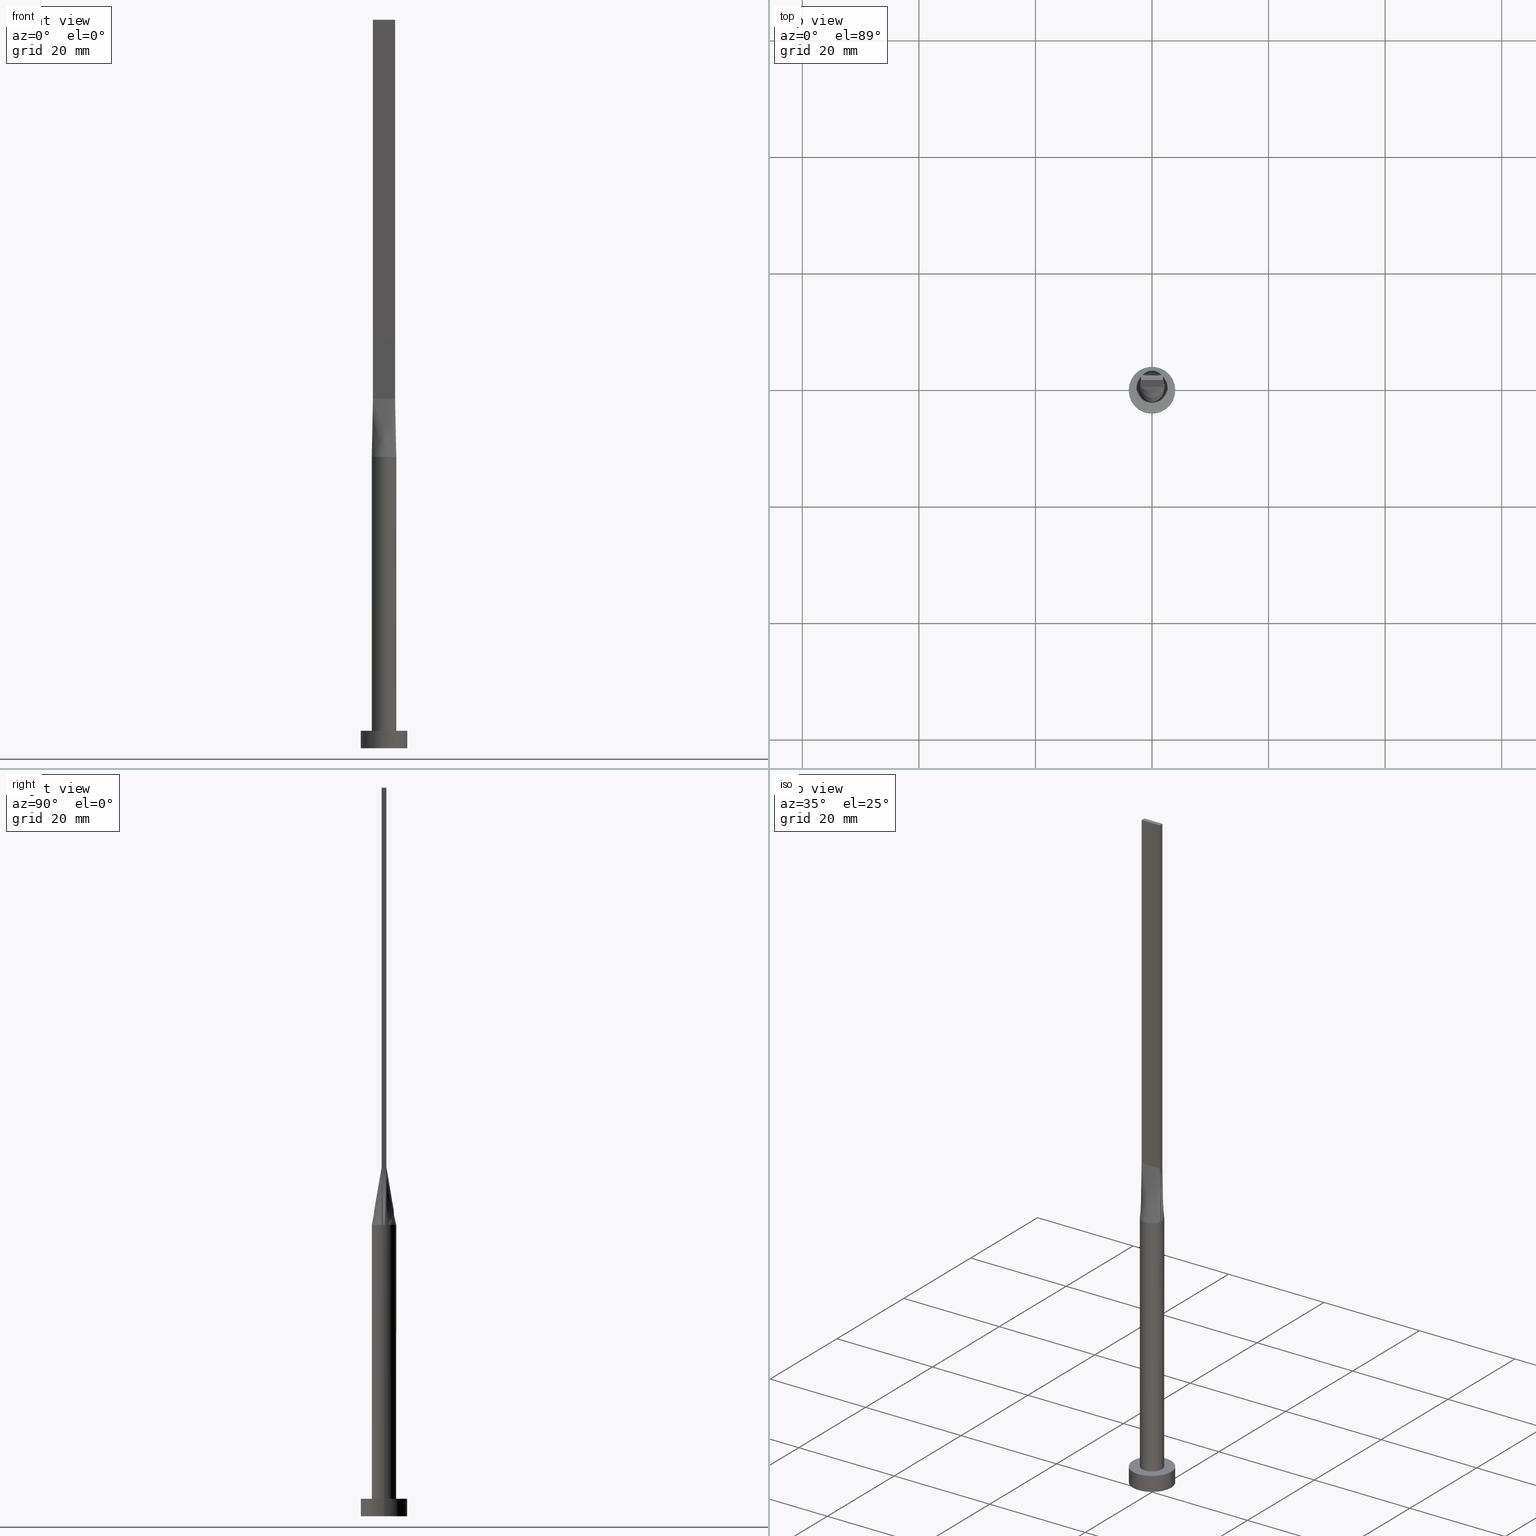
[diagram: canonical four-view strip — front | top / right | iso, engineering-drawing reading convention]
A machine part, canonical four-view strip (front | top / right | iso — engineering-drawing reading convention). The complete STEP part file that produces these views, byte-faithful:
ISO-10303-21;
HEADER;
FILE_DESCRIPTION (( 'STEP AP203' ),
    '1' );
FILE_NAME ('3c75.STEP',
    '2026-02-12T09:03:59',
    ( '' ),
    ( '' ),
    'SwSTEP 2.0',
    'SolidWorks 2019',
    '' );
FILE_SCHEMA (( 'CONFIG_CONTROL_DESIGN' ));
ENDSEC;

DATA;
#1 = LINE ( 'NONE', #446, #465 ) ;
#2 = FACE_OUTER_BOUND ( 'NONE', #127, .T. ) ;
#3 = CARTESIAN_POINT ( 'NONE',  ( 0.5670887265440289760, -2.040296735810464668, 50.00000000000000000 ) ) ;
#4 = DIRECTION ( 'NONE',  ( -1.000000000000000000, 8.131516293641282269E-16, 0.000000000000000000 ) ) ;
#5 = CARTESIAN_POINT ( 'NONE',  ( 0.000000000000000000, 0.000000000000000000, 3.000000000000000000 ) ) ;
#6 = AXIS2_PLACEMENT_3D ( 'NONE', #504, #7, #67 ) ;
#7 = DIRECTION ( 'NONE',  ( 0.000000000000000000, 0.000000000000000000, 1.000000000000000000 ) ) ;
#8 = DIRECTION ( 'NONE',  ( -0.000000000000000000, -0.000000000000000000, -1.000000000000000000 ) ) ;
#9 = CARTESIAN_POINT ( 'NONE',  ( -0.5670887265440298641, 2.040296735810464668, 50.00000000000000000 ) ) ;
#10 = CARTESIAN_POINT ( 'NONE',  ( -1.977477274236086657, -0.4163110051023335423, 55.00000000000000711 ) ) ;
#11 = CARTESIAN_POINT ( 'NONE',  ( 0.000000000000000000, 0.000000000000000000, 3.000000000000000000 ) ) ;
#12 = CARTESIAN_POINT ( 'NONE',  ( 2.054954548472173403, 0.4326220102046680616, 50.00000000000000000 ) ) ;
#13 = CARTESIAN_POINT ( 'NONE',  ( 1.899999999999999023, -0.3999999999999998002, 125.0000000000000000 ) ) ;
#14 = EDGE_CURVE ( 'NONE', #24, #270, #248, .T. ) ;
#15 = CARTESIAN_POINT ( 'NONE',  ( 1.638039177766652754, 1.336522195786985057, 50.00000000000002132 ) ) ;
#16 = VECTOR ( 'NONE', #81, 1000.000000000000000 ) ;
#17 = CARTESIAN_POINT ( 'NONE',  ( 0.000000000000000000, 0.000000000000000000, 0.000000000000000000 ) ) ;
#18 = ORIENTED_EDGE ( 'NONE', *, *, #239, .T. ) ;
#19 = PLANE ( 'NONE',  #450 ) ;
#20 = AXIS2_PLACEMENT_3D ( 'NONE', #464, #280, #323 ) ;
#21 = AXIS2_PLACEMENT_3D ( 'NONE', #353, #39, #267 ) ;
#22 = APPLICATION_PROTOCOL_DEFINITION ( 'international standard', 'config_control_design', 1994, #263 ) ;
#23 = EDGE_LOOP ( 'NONE', ( #18, #473, #213, #252 ) ) ;
#24 = VERTEX_POINT ( 'NONE', #536 ) ;
#25 = CALENDAR_DATE ( 2026, 12, 2 ) ;
#26 = CARTESIAN_POINT ( 'NONE',  ( -1.108333333333333171, 0.4000000000000001887, 60.00000000000000000 ) ) ;
#27 = CARTESIAN_POINT ( 'NONE',  ( 2.099516882689679953, 0.1457539759246152533, 50.00000000000000000 ) ) ;
#28 = EDGE_CURVE ( 'NONE', #522, #93, #44, .T. ) ;
#29 = EDGE_LOOP ( 'NONE', ( #336, #305, #171, #33, #296, #394 ) ) ;
#30 = EDGE_CURVE ( 'NONE', #573, #38, #221, .T. ) ;
#31 = CARTESIAN_POINT ( 'NONE',  ( -1.899999999999999689, 0.4000000000000002442, 125.0000000000000000 ) ) ;
#32 = LOCAL_TIME ( 10, 3, 59.00000000000000000, #210 ) ;
#33 = ORIENTED_EDGE ( 'NONE', *, *, #303, .F. ) ;
#34 = VERTEX_POINT ( 'NONE', #269 ) ;
#35 = CARTESIAN_POINT ( 'NONE',  ( 1.899999999999999023, -0.3999999999999998002, 125.0000000000000000 ) ) ;
#36 =( NAMED_UNIT ( * ) SI_UNIT ( $, .STERADIAN. ) SOLID_ANGLE_UNIT ( ) );
#37 = PRODUCT_RELATED_PRODUCT_CATEGORY ( 'detail', '', ( #151 ) ) ;
#38 = VERTEX_POINT ( 'NONE', #286 ) ;
#39 = DIRECTION ( 'NONE',  ( 0.000000000000000000, 0.000000000000000000, 1.000000000000000000 ) ) ;
#40 = PLANE ( 'NONE',  #178 ) ;
#41 = ORIENTED_EDGE ( 'NONE', *, *, #554, .F. ) ;
#42 = CARTESIAN_POINT ( 'NONE',  ( 2.099758441344840243, 4.928843353830161703E-16, 50.00000000000000000 ) ) ;
#43 = CARTESIAN_POINT ( 'NONE',  ( 1.977477274236086213, -0.4163110051023340419, 55.00000000000000711 ) ) ;
#44 = LINE ( 'NONE', #402, #556 ) ;
#45 = VECTOR ( 'NONE', #153, 1000.000000000000000 ) ;
#46 = AXIS2_PLACEMENT_3D ( 'NONE', #17, #72, #338 ) ;
#47 = ORIENTED_EDGE ( 'NONE', *, *, #119, .T. ) ;
#48 = CARTESIAN_POINT ( 'NONE',  ( 1.069497409764671003, 1.827724181718572538, 50.00000000000000711 ) ) ;
#49 = DIRECTION ( 'NONE',  ( -0.000000000000000000, -0.000000000000000000, -1.000000000000000000 ) ) ;
#50 = LINE ( 'NONE', #395, #301 ) ;
#51 = LINE ( 'NONE', #370, #409 ) ;
#52 = DIRECTION ( 'NONE',  ( 8.131516293641283255E-16, 1.000000000000000000, 0.000000000000000000 ) ) ;
#53 = LINE ( 'NONE', #415, #249 ) ;
#54 = AXIS2_PLACEMENT_3D ( 'NONE', #549, #463, #506 ) ;
#55 = VECTOR ( 'NONE', #476, 1000.000000000000000 ) ;
#56 = CARTESIAN_POINT ( 'NONE',  ( -1.899999999999999911, -0.3999999999999995781, 60.00000000000000711 ) ) ;
#57 = CARTESIAN_POINT ( 'NONE',  ( -1.899999999999999689, 0.4000000000000002442, 125.0000000000000000 ) ) ;
#58 = UNCERTAINTY_MEASURE_WITH_UNIT (LENGTH_MEASURE( 1.000000000000000082E-05 ), #487, 'distance_accuracy_value', 'NONE');
#59 = DIRECTION ( 'NONE',  ( -0.01549351246150988334, -0.003261792097160004338, 0.9998746480354023802 ) ) ;
#60 = CC_DESIGN_DATE_AND_TIME_ASSIGNMENT ( #485, #75, ( #190 ) ) ;
#61 = DIRECTION ( 'NONE',  ( 1.000000000000000000, 0.000000000000000000, 0.000000000000000000 ) ) ;
#62 = EDGE_CURVE ( 'NONE', #168, #569, #467, .T. ) ;
#63 = CARTESIAN_POINT ( 'NONE',  ( -1.583333333333333037, 0.4000000000000002442, 60.00000000000000000 ) ) ;
#64 = AXIS2_PLACEMENT_3D ( 'NONE', #87, #184, #177 ) ;
#65 = ORIENTED_EDGE ( 'NONE', *, *, #363, .T. ) ;
#66 = DATE_AND_TIME ( #201, #513 ) ;
#67 = DIRECTION ( 'NONE',  ( 1.000000000000000000, 0.000000000000000000, 0.000000000000000000 ) ) ;
#68 = CARTESIAN_POINT ( 'NONE',  ( 2.100000000000000089, 2.571758278209441957E-16, 50.00000000000000000 ) ) ;
#69 = ORIENTED_EDGE ( 'NONE', *, *, #164, .T. ) ;
#70 = CARTESIAN_POINT ( 'NONE',  ( -1.069497409764671003, 1.827724181718571872, 50.00000000000000711 ) ) ;
#71 = ORIENTED_EDGE ( 'NONE', *, *, #14, .T. ) ;
#72 = DIRECTION ( 'NONE',  ( 0.000000000000000000, 0.000000000000000000, 1.000000000000000000 ) ) ;
#73 = EDGE_CURVE ( 'NONE', #436, #165, #308, .T. ) ;
#74 = CARTESIAN_POINT ( 'NONE',  ( 1.266666666666666385, -0.3999999999999997446, 60.00000000000000000 ) ) ;
#75 = DATE_TIME_ROLE ( 'creation_date' ) ;
#76 = VERTEX_POINT ( 'NONE', #193 ) ;
#77 = CARTESIAN_POINT ( 'NONE',  ( 2.084662771283844140, 0.2915079518492307287, 50.00000000000000000 ) ) ;
#78 = APPROVAL_STATUS ( 'not_yet_approved' ) ;
#79 = ORIENTED_EDGE ( 'NONE', *, *, #419, .T. ) ;
#80 = CARTESIAN_POINT ( 'NONE',  ( -1.899999999999999911, -0.3999999999999995781, 125.0000000000000000 ) ) ;
#81 = DIRECTION ( 'NONE',  ( -2.710505431213761578E-16, -1.000000000000000000, 0.000000000000000000 ) ) ;
#82 = AXIS2_PLACEMENT_3D ( 'NONE', #11, #100, #278 ) ;
#83 = CC_DESIGN_PERSON_AND_ORGANIZATION_ASSIGNMENT ( #523, #244, ( #143 ) ) ;
#84 = ADVANCED_FACE ( 'NONE', ( #107 ), #469, .T. ) ;
#85 = ORIENTED_EDGE ( 'NONE', *, *, #363, .F. ) ;
#86 = EDGE_LOOP ( 'NONE', ( #251, #297 ) ) ;
#87 = CARTESIAN_POINT ( 'NONE',  ( 0.000000000000000000, 0.000000000000000000, 3.000000000000000000 ) ) ;
#88 = CARTESIAN_POINT ( 'NONE',  ( 1.638039177766651200, -1.336522195786985279, 50.00000000000000711 ) ) ;
#89 = EDGE_LOOP ( 'NONE', ( #451, #65 ) ) ;
#90 = CARTESIAN_POINT ( 'NONE',  ( -1.769939800381045147, 1.149026496286139842, 50.00000000000000711 ) ) ;
#91 = CARTESIAN_POINT ( 'NONE',  ( -1.741666666666666474, 0.4000000000000002442, 60.00000000000000000 ) ) ;
#92 = DIRECTION ( 'NONE',  ( 1.000000000000000000, 0.000000000000000000, 0.000000000000000000 ) ) ;
#93 = VERTEX_POINT ( 'NONE', #406 ) ;
#94 = CARTESIAN_POINT ( 'NONE',  ( 0.000000000000000000, 0.000000000000000000, 125.0000000000000000 ) ) ;
#95 = PLANE ( 'NONE',  #82 ) ;
#96 = VECTOR ( 'NONE', #261, 1000.000000000000227 ) ;
#97 = DIRECTION ( 'NONE',  ( -1.000000000000000000, 0.000000000000000000, 0.000000000000000000 ) ) ;
#98 = DIRECTION ( 'NONE',  ( 2.710505431213761085E-16, 1.000000000000000000, 0.000000000000000000 ) ) ;
#99 = CARTESIAN_POINT ( 'NONE',  ( -1.899999999999999467, 0.1333333333333335535, 60.00000000000000000 ) ) ;
#100 = DIRECTION ( 'NONE',  ( 0.000000000000000000, 0.000000000000000000, 1.000000000000000000 ) ) ;
#101 = CARTESIAN_POINT ( 'NONE',  ( -2.054954548472173403, -0.4326220102046674509, 50.00000000000000000 ) ) ;
#102 = DIRECTION ( 'NONE',  ( -0.000000000000000000, -0.000000000000000000, -1.000000000000000000 ) ) ;
#103 = CARTESIAN_POINT ( 'NONE',  ( -0.5670887265440306413, -2.040296735810464668, 50.00000000000001421 ) ) ;
#104 = VECTOR ( 'NONE', #59, 1000.000000000000227 ) ;
#105 = CC_DESIGN_APPROVAL ( #224, ( #190 ) ) ;
#106 = ADVANCED_FACE ( 'NONE', ( #2 ), #447, .F. ) ;
#107 = FACE_OUTER_BOUND ( 'NONE', #215, .T. ) ;
#108 = FACE_OUTER_BOUND ( 'NONE', #181, .T. ) ;
#109 = CARTESIAN_POINT ( 'NONE',  ( -1.266666666666666385, 0.4000000000000001887, 60.00000000000000000 ) ) ;
#110 = AXIS2_PLACEMENT_3D ( 'NONE', #5, #8, #146 ) ;
#111 = CARTESIAN_POINT ( 'NONE',  ( 0.000000000000000000, 0.000000000000000000, 50.00000000000000000 ) ) ;
#112 = LINE ( 'NONE', #327, #176 ) ;
#113 = ORIENTED_EDGE ( 'NONE', *, *, #554, .T. ) ;
#114 = PERSON_AND_ORGANIZATION ( #141, #180 ) ;
#115 = VERTEX_POINT ( 'NONE', #422 ) ;
#116 = ORIENTED_EDGE ( 'NONE', *, *, #166, .F. ) ;
#117 = APPROVAL_STATUS ( 'not_yet_approved' ) ;
#118 = CC_DESIGN_PERSON_AND_ORGANIZATION_ASSIGNMENT ( #170, #432, ( #259 ) ) ;
#119 = EDGE_CURVE ( 'NONE', #388, #436, #477, .T. ) ;
#120 = LOCAL_TIME ( 10, 3, 59.00000000000000000, #561 ) ;
#121 = PERSON_AND_ORGANIZATION_ROLE ( 'creator' ) ;
#122 = CARTESIAN_POINT ( 'NONE',  ( 1.960396204527856234, -0.7808940436533445828, 50.00000000000000711 ) ) ;
#123 = ORIENTED_EDGE ( 'NONE', *, *, #292, .T. ) ;
#124 = CALENDAR_DATE ( 2026, 12, 2 ) ;
#125 = ORIENTED_EDGE ( 'NONE', *, *, #515, .T. ) ;
#126 = DIRECTION ( 'NONE',  ( 0.000000000000000000, 0.000000000000000000, 1.000000000000000000 ) ) ;
#127 = EDGE_LOOP ( 'NONE', ( #528, #209 ) ) ;
#128 = EDGE_LOOP ( 'NONE', ( #256, #490, #136, #295 ) ) ;
#129 = FACE_BOUND ( 'NONE', #86, .T. ) ;
#130 = LINE ( 'NONE', #31, #16 ) ;
#131 = AXIS2_PLACEMENT_3D ( 'NONE', #264, #228, #186 ) ;
#132 = ORIENTED_EDGE ( 'NONE', *, *, #538, .F. ) ;
#133 = CYLINDRICAL_SURFACE ( 'NONE', #283, 2.100000000000000089 ) ;
#134 = CARTESIAN_POINT ( 'NONE',  ( 1.899999999999999689, -0.2666666666666664964, 60.00000000000000000 ) ) ;
#135 = DIRECTION ( 'NONE',  ( 1.000000000000000000, 0.000000000000000000, 0.000000000000000000 ) ) ;
#136 = ORIENTED_EDGE ( 'NONE', *, *, #374, .F. ) ;
#137 = LINE ( 'NONE', #140, #398 ) ;
#138 = CARTESIAN_POINT ( 'NONE',  ( 0.000000000000000000, 0.000000000000000000, 50.00000000000000000 ) ) ;
#139 = ADVANCED_FACE ( 'NONE', ( #277 ), #324, .T. ) ;
#140 = CARTESIAN_POINT ( 'NONE',  ( -2.100000000000000089, 0.000000000000000000, 50.00000000000000000 ) ) ;
#141 = PERSON ( 'NEUR�EN�', 'NEUR�EN�', 'NEUR�EN�', ('NEUR�EN�'), ('NEUR�EN�'), ('NEUR�EN�') ) ;
#142 = CARTESIAN_POINT ( 'NONE',  ( -1.583333333333332371, -0.3999999999999995226, 60.00000000000000000 ) ) ;
#143 = PRODUCT_DEFINITION_FORMATION_WITH_SPECIFIED_SOURCE ( 'LIBOVOLN�', '', #151, .NOT_KNOWN. ) ;
#144 = EDGE_CURVE ( 'NONE', #574, #478, #198, .T. ) ;
#145 = CARTESIAN_POINT ( 'NONE',  ( -0.2839879338753505955, 2.100000000000000533, 50.00000000000000711 ) ) ;
#146 = DIRECTION ( 'NONE',  ( -1.000000000000000000, 0.000000000000000000, 0.000000000000000000 ) ) ;
#147 = CARTESIAN_POINT ( 'NONE',  ( -1.899999999999999689, -0.2666666666666662744, 60.00000000000000000 ) ) ;
#148 = CARTESIAN_POINT ( 'NONE',  ( -2.054954548472173403, 0.4326220102046679505, 50.00000000000000000 ) ) ;
#149 = CARTESIAN_POINT ( 'NONE',  ( -1.069497409764672113, -1.827724181718571650, 50.00000000000000711 ) ) ;
#150 = APPROVAL ( #78, 'NEUR�EN�' ) ;
#151 = PRODUCT ( '3c75', '3c75', '', ( #555 ) ) ;
#152 = CARTESIAN_POINT ( 'NONE',  ( 1.266666666666666607, 0.4000000000000001887, 60.00000000000000000 ) ) ;
#153 = DIRECTION ( 'NONE',  ( -2.710505431213761578E-16, -1.000000000000000000, 0.000000000000000000 ) ) ;
#154 = VECTOR ( 'NONE', #373, 1000.000000000000227 ) ;
#155 = CARTESIAN_POINT ( 'NONE',  ( 0.7916666666666668517, 0.4000000000000001887, 60.00000000000000000 ) ) ;
#156 = CARTESIAN_POINT ( 'NONE',  ( -2.099516882689679953, -0.1457539759246147815, 50.00000000000000000 ) ) ;
#157 = COORDINATED_UNIVERSAL_TIME_OFFSET ( 1, 0, .AHEAD. ) ;
#158 = EDGE_CURVE ( 'NONE', #429, #115, #191, .T. ) ;
#159 = CC_DESIGN_SECURITY_CLASSIFICATION ( #259, ( #143 ) ) ;
#160 = ORIENTED_EDGE ( 'NONE', *, *, #175, .T. ) ;
#161 = DIRECTION ( 'NONE',  ( 0.000000000000000000, 0.000000000000000000, 1.000000000000000000 ) ) ;
#162 = ORIENTED_EDGE ( 'NONE', *, *, #479, .F. ) ;
#163 = EDGE_CURVE ( 'NONE', #564, #567, #423, .T. ) ;
#164 = EDGE_CURVE ( 'NONE', #574, #567, #416, .T. ) ;
#165 = VERTEX_POINT ( 'NONE', #230 ) ;
#166 = EDGE_CURVE ( 'NONE', #478, #564, #112, .T. ) ;
#167 = AXIS2_PLACEMENT_3D ( 'NONE', #138, #576, #92 ) ;
#168 = VERTEX_POINT ( 'NONE', #194 ) ;
#169 = CARTESIAN_POINT ( 'NONE',  ( 1.769939800381043815, -1.149026496286140731, 50.00000000000000711 ) ) ;
#170 = PERSON_AND_ORGANIZATION ( #141, #180 ) ;
#171 = ORIENTED_EDGE ( 'NONE', *, *, #419, .F. ) ;
#172 = CARTESIAN_POINT ( 'NONE',  ( 1.288188016604683739, -1.676316068528189263, 50.00000000000001421 ) ) ;
#173 = CARTESIAN_POINT ( 'NONE',  ( 1.899999999999999023, -0.3999999999999998002, 125.0000000000000000 ) ) ;
#174 = ORIENTED_EDGE ( 'NONE', *, *, #461, .T. ) ;
#175 = EDGE_CURVE ( 'NONE', #429, #76, #237, .T. ) ;
#176 = VECTOR ( 'NONE', #287, 1000.000000000000000 ) ;
#177 = DIRECTION ( 'NONE',  ( 1.000000000000000000, 0.000000000000000000, 0.000000000000000000 ) ) ;
#178 = AXIS2_PLACEMENT_3D ( 'NONE', #311, #217, #396 ) ;
#179 = CARTESIAN_POINT ( 'NONE',  ( 4.000000000000000000, 4.898587196589412829E-16, 0.000000000000000000 ) ) ;
#180 = ORGANIZATION ( 'NEUR�EN�', 'NEUR�EN�', '' ) ;
#181 = EDGE_LOOP ( 'NONE', ( #85, #206, #526, #562 ) ) ;
#182 = CARTESIAN_POINT ( 'NONE',  ( -1.069497409764671003, 1.827724181718571872, 50.00000000000000711 ) ) ;
#183 = EDGE_CURVE ( 'NONE', #93, #34, #550, .T. ) ;
#184 = DIRECTION ( 'NONE',  ( 0.000000000000000000, 0.000000000000000000, 1.000000000000000000 ) ) ;
#185 = CARTESIAN_POINT ( 'NONE',  ( -1.288188016604684627, -1.676316068528187930, 50.00000000000000711 ) ) ;
#186 = DIRECTION ( 'NONE',  ( 1.000000000000000000, 0.000000000000000000, 0.000000000000000000 ) ) ;
#187 = CARTESIAN_POINT ( 'NONE',  ( 0.000000000000000000, 0.000000000000000000, 0.000000000000000000 ) ) ;
#188 = CARTESIAN_POINT ( 'NONE',  ( -1.899999999999999911, -0.3999999999999995781, 125.0000000000000000 ) ) ;
#189 = CC_DESIGN_APPROVAL ( #537, ( #143 ) ) ;
#190 = PRODUCT_DEFINITION ( 'NEZN�M�', '', #143, #208 ) ;
#191 = LINE ( 'NONE', #235, #328 ) ;
#192 = CARTESIAN_POINT ( 'NONE',  ( -2.019676033883314403, -0.6001949545017496446, 50.00000000000000711 ) ) ;
#193 = CARTESIAN_POINT ( 'NONE',  ( 1.899999999999999689, 0.4000000000000002442, 125.0000000000000000 ) ) ;
#194 = CARTESIAN_POINT ( 'NONE',  ( 2.055132260641998609, 0.4326595789354660826, 50.00000000000000000 ) ) ;
#195 = FACE_OUTER_BOUND ( 'NONE', #89, .T. ) ;
#196 = CARTESIAN_POINT ( 'NONE',  ( 1.899999999999999689, 0.4000000000000002442, 60.00000000000000711 ) ) ;
#197 = CARTESIAN_POINT ( 'NONE',  ( 0.000000000000000000, 0.000000000000000000, 3.000000000000000000 ) ) ;
#198 = CIRCLE ( 'NONE', #20, 4.000000000000000000 ) ;
#199 = AXIS2_PLACEMENT_3D ( 'NONE', #80, #393, #260 ) ;
#200 = ORIENTED_EDGE ( 'NONE', *, *, #414, .T. ) ;
#201 = CALENDAR_DATE ( 2026, 12, 2 ) ;
#202 = CARTESIAN_POINT ( 'NONE',  ( -1.899999999999999467, 0.2666666666666668850, 60.00000000000000000 ) ) ;
#203 = APPROVAL_ROLE ( '' ) ;
#204 = CARTESIAN_POINT ( 'NONE',  ( -4.000000000000000000, 0.000000000000000000, 3.000000000000000000 ) ) ;
#205 = AXIS2_PLACEMENT_3D ( 'NONE', #57, #404, #98 ) ;
#206 = ORIENTED_EDGE ( 'NONE', *, *, #166, .T. ) ;
#207 = COORDINATED_UNIVERSAL_TIME_OFFSET ( 1, 0, .AHEAD. ) ;
#208 = DESIGN_CONTEXT ( 'detailed design', #250, 'design' ) ;
#209 = ORIENTED_EDGE ( 'NONE', *, *, #163, .F. ) ;
#210 = COORDINATED_UNIVERSAL_TIME_OFFSET ( 1, 0, .AHEAD. ) ;
#211 = DIRECTION ( 'NONE',  ( 1.000000000000000000, -8.881784197001252323E-16, 0.000000000000000000 ) ) ;
#212 = APPROVAL_DATE_TIME ( #253, #224 ) ;
#213 = ORIENTED_EDGE ( 'NONE', *, *, #515, .F. ) ;
#214 = CARTESIAN_POINT ( 'NONE',  ( 0.7916666666666671848, -0.3999999999999997446, 60.00000000000000000 ) ) ;
#215 = EDGE_LOOP ( 'NONE', ( #440, #200, #529, #385 ) ) ;
#216 = CARTESIAN_POINT ( 'NONE',  ( 0.000000000000000000, 0.000000000000000000, 50.00000000000000000 ) ) ;
#217 = DIRECTION ( 'NONE',  ( 0.000000000000000000, -1.000000000000000000, 0.000000000000000000 ) ) ;
#218 = ORIENTED_EDGE ( 'NONE', *, *, #158, .F. ) ;
#219 = DIRECTION ( 'NONE',  ( 1.000000000000000000, 0.000000000000000000, 0.000000000000000000 ) ) ;
#220 = CARTESIAN_POINT ( 'NONE',  ( 0.6333333333333341919, -0.3999999999999997446, 60.00000000000000000 ) ) ;
#221 = LINE ( 'NONE', #262, #532 ) ;
#222 = ORIENTED_EDGE ( 'NONE', *, *, #14, .F. ) ;
#223 = DIRECTION ( 'NONE',  ( 1.000000000000000000, 0.000000000000000000, -0.000000000000000000 ) ) ;
#224 = APPROVAL ( #117, 'NEUR�EN�' ) ;
#225 = CARTESIAN_POINT ( 'NONE',  ( -4.000000000000000000, 0.000000000000000000, 0.000000000000000000 ) ) ;
#226 = CARTESIAN_POINT ( 'NONE',  ( 0.5670887265440297531, 2.040296735810463780, 50.00000000000000711 ) ) ;
#227 = CARTESIAN_POINT ( 'NONE',  ( -0.1583333333333321602, -0.3999999999999996336, 60.00000000000000000 ) ) ;
#228 = DIRECTION ( 'NONE',  ( 0.000000000000000000, 0.000000000000000000, 1.000000000000000000 ) ) ;
#229 = DIRECTION ( 'NONE',  ( 1.000000000000000000, -5.706327223607920020E-17, 0.000000000000000000 ) ) ;
#230 = CARTESIAN_POINT ( 'NONE',  ( -2.100000000000000089, 0.000000000000000000, 3.000000000000000000 ) ) ;
#231 = CARTESIAN_POINT ( 'NONE',  ( 4.000000000000000000, 4.898587196589412829E-16, 3.000000000000000000 ) ) ;
#232 = CIRCLE ( 'NONE', #64, 4.000000000000000000 ) ;
#233 = CARTESIAN_POINT ( 'NONE',  ( 0.1583333333333336590, 0.4000000000000001887, 60.00000000000000000 ) ) ;
#234 = B_SPLINE_SURFACE_WITH_KNOTS ( 'NONE', 3, 1, ( 
 ( #345, #535 ),
 ( #524, #134 ),
 ( #484, #527 ),
 ( #27, #314 ),
 ( #77, #496 ),
 ( #437, #307 ) ),
 .UNSPECIFIED., .F., .F., .F.,
 ( 4, 2, 4 ),
 ( 2, 2 ),
 ( 0.000000000000000000, 0.5000000000000000000, 1.000000000000000000 ),
 ( 0.000000000000000000, 1.000000000000000000 ),
 .UNSPECIFIED. ) ;
#235 = CARTESIAN_POINT ( 'NONE',  ( 1.899999999999999023, -0.3999999999999998002, 125.0000000000000000 ) ) ;
#236 = FACE_OUTER_BOUND ( 'NONE', #23, .T. ) ;
#237 = LINE ( 'NONE', #13, #509 ) ;
#238 = CARTESIAN_POINT ( 'NONE',  ( 0.6333333333333336368, 0.4000000000000001887, 60.00000000000000000 ) ) ;
#239 = EDGE_CURVE ( 'NONE', #38, #93, #368, .T. ) ;
#240 = CIRCLE ( 'NONE', #167, 2.100000000000000089 ) ;
#241 = CARTESIAN_POINT ( 'NONE',  ( -0.7916666666666664076, 0.4000000000000002442, 60.00000000000000000 ) ) ;
#242 = CARTESIAN_POINT ( 'NONE',  ( 0.3166666666666669849, 0.4000000000000001887, 60.00000000000000000 ) ) ;
#243 = ORIENTED_EDGE ( 'NONE', *, *, #183, .F. ) ;
#244 = PERSON_AND_ORGANIZATION_ROLE ( 'design_supplier' ) ;
#245 = CARTESIAN_POINT ( 'NONE',  ( 2.055161022591414977, -0.4326655822303633325, 50.00000000000000000 ) ) ;
#246 = CC_DESIGN_DATE_AND_TIME_ASSIGNMENT ( #525, #563, ( #259 ) ) ;
#247 = CARTESIAN_POINT ( 'NONE',  ( -0.6333333333333329707, 0.4000000000000001887, 60.00000000000000000 ) ) ;
#248 = CIRCLE ( 'NONE', #300, 2.100000000000000089 ) ;
#249 = VECTOR ( 'NONE', #362, 1000.000000000000000 ) ;
#250 = APPLICATION_CONTEXT ( 'configuration controlled 3d designs of mechanical parts and assemblies' ) ;
#251 = ORIENTED_EDGE ( 'NONE', *, *, #340, .F. ) ;
#252 = ORIENTED_EDGE ( 'NONE', *, *, #30, .T. ) ;
#253 = DATE_AND_TIME ( #124, #439 ) ;
#254 = LINE ( 'NONE', #43, #96 ) ;
#255 = PERSON_AND_ORGANIZATION ( #141, #180 ) ;
#256 = ORIENTED_EDGE ( 'NONE', *, *, #482, .T. ) ;
#257 = CARTESIAN_POINT ( 'NONE',  ( -1.899999999999999689, 0.4000000000000002442, 125.0000000000000000 ) ) ;
#258 = ORIENTED_EDGE ( 'NONE', *, *, #538, .T. ) ;
#259 = SECURITY_CLASSIFICATION ( '', '', #293 ) ;
#260 = DIRECTION ( 'NONE',  ( -1.000000000000000000, 5.706327223607920020E-17, 0.000000000000000000 ) ) ;
#261 = DIRECTION ( 'NONE',  ( -0.01549351246150994753, 0.003261792097160015180, 0.9998746480354023802 ) ) ;
#262 = CARTESIAN_POINT ( 'NONE',  ( -1.899999999999999689, 0.4000000000000002442, 125.0000000000000000 ) ) ;
#263 = APPLICATION_CONTEXT ( 'configuration controlled 3d designs of mechanical parts and assemblies' ) ;
#264 = CARTESIAN_POINT ( 'NONE',  ( 0.000000000000000000, 0.000000000000000000, 50.00000000000000000 ) ) ;
#265 = CARTESIAN_POINT ( 'NONE',  ( 1.108333333333333393, -0.3999999999999997446, 60.00000000000000000 ) ) ;
#266 = DIRECTION ( 'NONE',  ( 0.000000000000000000, 0.000000000000000000, 1.000000000000000000 ) ) ;
#267 = DIRECTION ( 'NONE',  ( 1.000000000000000000, 0.000000000000000000, 0.000000000000000000 ) ) ;
#268 = CARTESIAN_POINT ( 'NONE',  ( -2.054954548472173403, 0.4326220102046675064, 50.00000000000000000 ) ) ;
#269 = CARTESIAN_POINT ( 'NONE',  ( -2.055145036631130129, -0.4326623253166036465, 50.00000000000000000 ) ) ;
#270 = VERTEX_POINT ( 'NONE', #512 ) ;
#271 = DIRECTION ( 'NONE',  ( -2.710505431213761085E-16, 1.000000000000000000, -0.000000000000000000 ) ) ;
#272 = CIRCLE ( 'NONE', #131, 2.100000000000000089 ) ;
#273 = CARTESIAN_POINT ( 'NONE',  ( -1.741666666666666252, -0.3999999999999995226, 60.00000000000000000 ) ) ;
#274 = DIRECTION ( 'NONE',  ( 0.01549351246150992671, -0.003261792097159901989, 0.9998746480354023802 ) ) ;
#275 = CYLINDRICAL_SURFACE ( 'NONE', #110, 4.000000000000000000 ) ;
#276 = CYLINDRICAL_SURFACE ( 'NONE', #339, 4.000000000000000000 ) ;
#277 = FACE_OUTER_BOUND ( 'NONE', #352, .T. ) ;
#278 = DIRECTION ( 'NONE',  ( 1.000000000000000000, 0.000000000000000000, -0.000000000000000000 ) ) ;
#279 = CARTESIAN_POINT ( 'NONE',  ( 1.960396204527856900, 0.7808940436533436946, 50.00000000000000711 ) ) ;
#280 = DIRECTION ( 'NONE',  ( 0.000000000000000000, 0.000000000000000000, 1.000000000000000000 ) ) ;
#281 = CARTESIAN_POINT ( 'NONE',  ( 0.2839879338753495963, -2.100000000000000533, 50.00000000000001421 ) ) ;
#282 = VECTOR ( 'NONE', #102, 1000.000000000000000 ) ;
#283 = AXIS2_PLACEMENT_3D ( 'NONE', #216, #310, #575 ) ;
#284 = CARTESIAN_POINT ( 'NONE',  ( -0.2839879338753505955, 2.100000000000000533, 50.00000000000000711 ) ) ;
#285 = PRODUCT_DEFINITION_SHAPE ( 'NONE', 'NONE',  #190 ) ;
#286 = CARTESIAN_POINT ( 'NONE',  ( -1.899999999999999689, 0.4000000000000002442, 60.00000000000000711 ) ) ;
#287 = DIRECTION ( 'NONE',  ( -0.000000000000000000, -0.000000000000000000, -1.000000000000000000 ) ) ;
#288 = CARTESIAN_POINT ( 'NONE',  ( 1.069497409764671003, 1.827724181718572538, 50.00000000000000711 ) ) ;
#289 = ADVANCED_FACE ( 'NONE', ( #108 ), #276, .T. ) ;
#290 = CARTESIAN_POINT ( 'NONE',  ( 0.5670887265440297531, 2.040296735810463780, 50.00000000000000711 ) ) ;
#291 = CARTESIAN_POINT ( 'NONE',  ( -1.899999999999999689, 0.4000000000000002442, 60.00000000000000711 ) ) ;
#292 = EDGE_CURVE ( 'NONE', #93, #115, #458, .T. ) ;
#293 = SECURITY_CLASSIFICATION_LEVEL ( 'unclassified' ) ;
#294 = CARTESIAN_POINT ( 'NONE',  ( -1.899999999999999911, -0.3999999999999995781, 60.00000000000000711 ) ) ;
#295 = ORIENTED_EDGE ( 'NONE', *, *, #479, .T. ) ;
#296 = ORIENTED_EDGE ( 'NONE', *, *, #392, .T. ) ;
#297 = ORIENTED_EDGE ( 'NONE', *, *, #73, .F. ) ;
#298 = APPROVAL_DATE_TIME ( #66, #150 ) ;
#299 = CARTESIAN_POINT ( 'NONE',  ( -0.3166666666666663743, 0.4000000000000001887, 60.00000000000000000 ) ) ;
#300 = AXIS2_PLACEMENT_3D ( 'NONE', #111, #266, #135 ) ;
#301 = VECTOR ( 'NONE', #271, 1000.000000000000000 ) ;
#302 = PERSON_AND_ORGANIZATION ( #141, #180 ) ;
#303 = EDGE_CURVE ( 'NONE', #270, #34, #319, .T. ) ;
#304 = CARTESIAN_POINT ( 'NONE',  ( 2.054954548472172959, -0.4326220102046682281, 50.00000000000000000 ) ) ;
#305 = ORIENTED_EDGE ( 'NONE', *, *, #557, .F. ) ;
#306 = ORIENTED_EDGE ( 'NONE', *, *, #292, .F. ) ;
#307 = CARTESIAN_POINT ( 'NONE',  ( 1.899999999999999689, 0.4000000000000002442, 60.00000000000000711 ) ) ;
#308 = CIRCLE ( 'NONE', #54, 2.100000000000000089 ) ;
#309 = VERTEX_POINT ( 'NONE', #245 ) ;
#310 = DIRECTION ( 'NONE',  ( -0.000000000000000000, -0.000000000000000000, -1.000000000000000000 ) ) ;
#311 = CARTESIAN_POINT ( 'NONE',  ( 1.899999999999999689, 0.4000000000000002442, 125.0000000000000000 ) ) ;
#312 = CC_DESIGN_PERSON_AND_ORGANIZATION_ASSIGNMENT ( #302, #380, ( #151 ) ) ;
#313 = CARTESIAN_POINT ( 'NONE',  ( 1.288188016604684183, 1.676316068528189041, 50.00000000000000711 ) ) ;
#314 = CARTESIAN_POINT ( 'NONE',  ( 1.899999999999999467, 0.1333333333333334147, 60.00000000000000000 ) ) ;
#315 = EDGE_LOOP ( 'NONE', ( #79, #258, #306, #579 ) ) ;
#316 = CARTESIAN_POINT ( 'NONE',  ( 1.960396204527856900, 0.7808940436533436946, 50.00000000000000711 ) ) ;
#317 = FACE_OUTER_BOUND ( 'NONE', #480, .T. ) ;
#318 = DIRECTION ( 'NONE',  ( -0.000000000000000000, -0.000000000000000000, -1.000000000000000000 ) ) ;
#319 = CIRCLE ( 'NONE', #6, 2.100000000000000089 ) ;
#320 = CARTESIAN_POINT ( 'NONE',  ( 1.069497409764670115, -1.827724181718573204, 50.00000000000000711 ) ) ;
#321 = PLANE ( 'NONE',  #199 ) ;
#322 = CARTESIAN_POINT ( 'NONE',  ( -1.769939800381044481, -1.149026496286139176, 49.99999999999999289 ) ) ;
#323 = DIRECTION ( 'NONE',  ( 1.000000000000000000, 0.000000000000000000, 0.000000000000000000 ) ) ;
#324 = B_SPLINE_SURFACE_WITH_KNOTS ( 'NONE', 3, 1, ( 
 ( #148, #291 ),
 ( #472, #202 ),
 ( #468, #99 ),
 ( #156, #365 ),
 ( #507, #147 ),
 ( #101, #56 ) ),
 .UNSPECIFIED., .F., .F., .F.,
 ( 4, 2, 4 ),
 ( 2, 2 ),
 ( 0.000000000000000000, 0.5000000000000000000, 1.000000000000000000 ),
 ( 0.000000000000000000, 1.000000000000000000 ),
 .UNSPECIFIED. ) ;
#325 = CARTESIAN_POINT ( 'NONE',  ( -0.6333333333333318604, -0.3999999999999996336, 60.00000000000000000 ) ) ;
#326 = CARTESIAN_POINT ( 'NONE',  ( 1.583333333333333259, 0.4000000000000002442, 60.00000000000000711 ) ) ;
#327 = CARTESIAN_POINT ( 'NONE',  ( 4.000000000000000000, 4.898587196589412829E-16, 3.000000000000000000 ) ) ;
#328 = VECTOR ( 'NONE', #547, 1000.000000000000000 ) ;
#329 = VECTOR ( 'NONE', #229, 1000.000000000000000 ) ;
#330 = CC_DESIGN_PERSON_AND_ORGANIZATION_ASSIGNMENT ( #568, #517, ( #143 ) ) ;
#331 = ADVANCED_FACE ( 'NONE', ( #421 ), #19, .T. ) ;
#332 = PERSON_AND_ORGANIZATION ( #141, #180 ) ;
#333 = CIRCLE ( 'NONE', #21, 4.000000000000000000 ) ;
#334 = DIRECTION ( 'NONE',  ( -1.000000000000000000, 0.000000000000000000, 0.000000000000000000 ) ) ;
#335 = ORIENTED_EDGE ( 'NONE', *, *, #371, .F. ) ;
#336 = ORIENTED_EDGE ( 'NONE', *, *, #119, .F. ) ;
#337 = ORIENTED_EDGE ( 'NONE', *, *, #73, .T. ) ;
#338 = DIRECTION ( 'NONE',  ( 1.000000000000000000, 0.000000000000000000, 0.000000000000000000 ) ) ;
#339 = AXIS2_PLACEMENT_3D ( 'NONE', #197, #552, #334 ) ;
#340 = EDGE_CURVE ( 'NONE', #165, #436, #361, .T. ) ;
#341 = DIRECTION ( 'NONE',  ( -0.000000000000000000, -0.000000000000000000, -1.000000000000000000 ) ) ;
#342 = CALENDAR_DATE ( 2026, 12, 2 ) ;
#343 = EDGE_CURVE ( 'NONE', #115, #569, #50, .T. ) ;
#344 = ORIENTED_EDGE ( 'NONE', *, *, #461, .F. ) ;
#345 = CARTESIAN_POINT ( 'NONE',  ( 2.054954548472172959, -0.4326220102046691163, 50.00000000000000000 ) ) ;
#346 = ORIENTED_EDGE ( 'NONE', *, *, #158, .T. ) ;
#347 = ORIENTED_EDGE ( 'NONE', *, *, #414, .F. ) ;
#348 = CARTESIAN_POINT ( 'NONE',  ( 1.638039177766652754, 1.336522195786985057, 50.00000000000002132 ) ) ;
#349 = ADVANCED_FACE ( 'NONE', ( #400 ), #133, .T. ) ;
#350 = CARTESIAN_POINT ( 'NONE',  ( 1.899999999999999023, -0.3999999999999998002, 60.00000000000000711 ) ) ;
#351 = EDGE_CURVE ( 'NONE', #567, #564, #333, .T. ) ;
#352 = EDGE_LOOP ( 'NONE', ( #71, #390, #243, #519, #347 ) ) ;
#353 = CARTESIAN_POINT ( 'NONE',  ( 0.000000000000000000, 0.000000000000000000, 0.000000000000000000 ) ) ;
#354 = CARTESIAN_POINT ( 'NONE',  ( -4.000000000000000000, 0.000000000000000000, 3.000000000000000000 ) ) ;
#355 = ORIENTED_EDGE ( 'NONE', *, *, #62, .T. ) ;
#356 = CARTESIAN_POINT ( 'NONE',  ( -1.288188016604684183, 1.676316068528189263, 50.00000000000002132 ) ) ;
#357 = CARTESIAN_POINT ( 'NONE',  ( 0.000000000000000000, 0.000000000000000000, 50.00000000000000000 ) ) ;
#358 = CARTESIAN_POINT ( 'NONE',  ( -0.5670887265440298641, 2.040296735810464668, 50.00000000000000000 ) ) ;
#359 = CARTESIAN_POINT ( 'NONE',  ( -0.3166666666666653196, -0.3999999999999996336, 60.00000000000000000 ) ) ;
#360 = CARTESIAN_POINT ( 'NONE',  ( -1.977477274236086657, 0.4163110051023338753, 55.00000000000000711 ) ) ;
#361 = CIRCLE ( 'NONE', #544, 2.100000000000000089 ) ;
#362 = DIRECTION ( 'NONE',  ( -1.000000000000000000, -0.000000000000000000, -0.000000000000000000 ) ) ;
#363 = EDGE_CURVE ( 'NONE', #478, #574, #232, .T. ) ;
#364 = CARTESIAN_POINT ( 'NONE',  ( 2.019676033883313515, 0.6001949545017501997, 50.00000000000000711 ) ) ;
#365 = CARTESIAN_POINT ( 'NONE',  ( -1.899999999999999689, -0.1333333333333330539, 60.00000000000000000 ) ) ;
#366 = CARTESIAN_POINT ( 'NONE',  ( -2.054954548472173403, -0.4326220102046674509, 50.00000000000000000 ) ) ;
#367 = CARTESIAN_POINT ( 'NONE',  ( 1.769939800381044259, 1.149026496286139620, 49.99999999999999289 ) ) ;
#368 = LINE ( 'NONE', #408, #45 ) ;
#369 = B_SPLINE_SURFACE_WITH_KNOTS ( 'NONE', 3, 1, ( 
 ( #366, #410 ),
 ( #192, #273 ),
 ( #503, #142 ),
 ( #322, #548 ),
 ( #407, #454 ),
 ( #185, #505 ),
 ( #149, #325 ),
 ( #103, #359 ),
 ( #508, #227 ),
 ( #281, #466 ),
 ( #3, #543 ),
 ( #320, #220 ),
 ( #172, #214 ),
 ( #88, #265 ),
 ( #169, #74 ),
 ( #122, #531 ),
 ( #401, #433 ),
 ( #304, #350 ) ),
 .UNSPECIFIED., .F., .F., .F.,
 ( 4, 2, 2, 2, 2, 2, 2, 2, 4 ),
 ( 2, 2 ),
 ( 0.000000000000000000, 0.1250000000000000833, 0.2500000000000001110, 0.3750000000000001110, 0.5000000000000001110, 0.6250000000000001110, 0.7500000000000000000, 0.8750000000000000000, 1.000000000000000000 ),
 ( 0.000000000000000000, 1.000000000000000000 ),
 .UNSPECIFIED. ) ;
#370 = CARTESIAN_POINT ( 'NONE',  ( 1.899999999999999689, 0.4000000000000002442, 125.0000000000000000 ) ) ;
#371 = EDGE_CURVE ( 'NONE', #168, #24, #431, .T. ) ;
#372 = CARTESIAN_POINT ( 'NONE',  ( 1.741666666666666474, 0.4000000000000002442, 60.00000000000000711 ) ) ;
#373 = DIRECTION ( 'NONE',  ( -0.01549351246150990416, -0.003261792097159956199, -0.9998746480354023802 ) ) ;
#374 = EDGE_CURVE ( 'NONE', #76, #573, #1, .T. ) ;
#375 = ADVANCED_BREP_SHAPE_REPRESENTATION ( '3c75', ( #511, #46 ), #516 ) ;
#376 = CARTESIAN_POINT ( 'NONE',  ( 1.288188016604684183, 1.676316068528189041, 50.00000000000000711 ) ) ;
#377 = ORIENTED_EDGE ( 'NONE', *, *, #557, .T. ) ;
#378 = SHAPE_DEFINITION_REPRESENTATION ( #285, #375 ) ;
#379 = AXIS2_PLACEMENT_3D ( 'NONE', #187, #161, #418 ) ;
#380 = PERSON_AND_ORGANIZATION_ROLE ( 'design_owner' ) ;
#381 = VECTOR ( 'NONE', #274, 1000.000000000000227 ) ;
#382 = DIRECTION ( 'NONE',  ( -0.000000000000000000, -0.000000000000000000, -1.000000000000000000 ) ) ;
#383 = CALENDAR_DATE ( 2026, 12, 2 ) ;
#384 = CARTESIAN_POINT ( 'NONE',  ( -1.288188016604684183, 1.676316068528189263, 50.00000000000002132 ) ) ;
#385 = ORIENTED_EDGE ( 'NONE', *, *, #62, .F. ) ;
#386 = ADVANCED_FACE ( 'NONE', ( #542 ), #540, .F. ) ;
#387 = APPROVAL_STATUS ( 'not_yet_approved' ) ;
#388 = VERTEX_POINT ( 'NONE', #42 ) ;
#389 = CARTESIAN_POINT ( 'NONE',  ( -1.899999999999999911, -0.3999999999999995781, 125.0000000000000000 ) ) ;
#390 = ORIENTED_EDGE ( 'NONE', *, *, #303, .T. ) ;
#391 = ORIENTED_EDGE ( 'NONE', *, *, #343, .F. ) ;
#392 = EDGE_CURVE ( 'NONE', #270, #165, #137, .T. ) ;
#393 = DIRECTION ( 'NONE',  ( 5.706327223607920020E-17, 1.000000000000000000, -0.000000000000000000 ) ) ;
#394 = ORIENTED_EDGE ( 'NONE', *, *, #340, .T. ) ;
#395 = CARTESIAN_POINT ( 'NONE',  ( 1.899999999999999689, 0.4000000000000002442, 60.00000000000000711 ) ) ;
#396 = DIRECTION ( 'NONE',  ( 0.000000000000000000, -0.000000000000000000, -1.000000000000000000 ) ) ;
#397 = VECTOR ( 'NONE', #382, 1000.000000000000000 ) ;
#398 = VECTOR ( 'NONE', #318, 1000.000000000000000 ) ;
#399 = ORIENTED_EDGE ( 'NONE', *, *, #392, .F. ) ;
#400 = FACE_OUTER_BOUND ( 'NONE', #539, .T. ) ;
#401 = CARTESIAN_POINT ( 'NONE',  ( 2.019676033883313071, -0.6001949545017514209, 50.00000000000000711 ) ) ;
#402 = CARTESIAN_POINT ( 'NONE',  ( -1.899999999999999911, -0.3999999999999995781, 125.0000000000000000 ) ) ;
#403 = CARTESIAN_POINT ( 'NONE',  ( -2.055148177435248691, 0.4326628259079252081, 50.00000000000000000 ) ) ;
#404 = DIRECTION ( 'NONE',  ( 1.000000000000000000, -2.710505431213761085E-16, 0.000000000000000000 ) ) ;
#405 = CARTESIAN_POINT ( 'NONE',  ( 1.769939800381044259, 1.149026496286139620, 49.99999999999999289 ) ) ;
#406 = CARTESIAN_POINT ( 'NONE',  ( -1.899999999999999911, -0.3999999999999995781, 60.00000000000000711 ) ) ;
#407 = CARTESIAN_POINT ( 'NONE',  ( -1.638039177766652310, -1.336522195786983724, 49.99999999999999289 ) ) ;
#408 = CARTESIAN_POINT ( 'NONE',  ( -1.899999999999999689, 0.4000000000000002442, 60.00000000000000711 ) ) ;
#409 = VECTOR ( 'NONE', #49, 1000.000000000000000 ) ;
#410 = CARTESIAN_POINT ( 'NONE',  ( -1.899999999999999911, -0.3999999999999995781, 60.00000000000000711 ) ) ;
#411 = CARTESIAN_POINT ( 'NONE',  ( -0.1583333333333330206, 0.4000000000000001887, 60.00000000000000000 ) ) ;
#412 = CARTESIAN_POINT ( 'NONE',  ( 1.977477274236086213, 0.4163110051023343749, 55.00000000000000711 ) ) ;
#413 = DIRECTION ( 'NONE',  ( 0.000000000000000000, 0.000000000000000000, 1.000000000000000000 ) ) ;
#414 = EDGE_CURVE ( 'NONE', #24, #38, #502, .T. ) ;
#415 = CARTESIAN_POINT ( 'NONE',  ( -1.899999999999999689, 0.4000000000000002442, 60.00000000000000711 ) ) ;
#416 = LINE ( 'NONE', #204, #397 ) ;
#417 = APPROVAL_ROLE ( '' ) ;
#418 = DIRECTION ( 'NONE',  ( 1.000000000000000000, 0.000000000000000000, -0.000000000000000000 ) ) ;
#419 = EDGE_CURVE ( 'NONE', #34, #309, #272, .T. ) ;
#420 = DATE_AND_TIME ( #383, #32 ) ;
#421 = FACE_OUTER_BOUND ( 'NONE', #424, .T. ) ;
#422 = CARTESIAN_POINT ( 'NONE',  ( 1.899999999999999023, -0.3999999999999998002, 60.00000000000000711 ) ) ;
#423 = CIRCLE ( 'NONE', #449, 4.000000000000000000 ) ;
#424 = EDGE_LOOP ( 'NONE', ( #443, #125, #174, #160 ) ) ;
#425 = AXIS2_PLACEMENT_3D ( 'NONE', #173, #4, #441 ) ;
#426 = CARTESIAN_POINT ( 'NONE',  ( -1.638039177766652976, 1.336522195786985057, 50.00000000000001421 ) ) ;
#427 = CC_DESIGN_PERSON_AND_ORGANIZATION_ASSIGNMENT ( #114, #121, ( #190 ) ) ;
#428 = ADVANCED_FACE ( 'NONE', ( #545 ), #321, .F. ) ;
#429 = VERTEX_POINT ( 'NONE', #35 ) ;
#430 = EDGE_LOOP ( 'NONE', ( #438, #162, #491, #346 ) ) ;
#431 = B_SPLINE_CURVE_WITH_KNOTS ( 'NONE', 3,
 ( #534, #499, #316, #405, #348, #313, #48, #226, #580, #145, #358, #182, #356, #495, #90, #456, #444, #403 ),
 .UNSPECIFIED., .F., .F.,
 ( 4, 2, 2, 2, 2, 2, 2, 2, 4 ),
 ( 0.000000000000000000, 0.1250000000000000000, 0.2500000000000000000, 0.3750000000000000000, 0.5000000000000000000, 0.6250000000000000000, 0.7500000000000000000, 0.8750000000000000000, 1.000000000000000000 ),
 .UNSPECIFIED. ) ;
#432 = PERSON_AND_ORGANIZATION_ROLE ( 'classification_officer' ) ;
#433 = CARTESIAN_POINT ( 'NONE',  ( 1.741666666666666030, -0.3999999999999997446, 60.00000000000000000 ) ) ;
#434 = EDGE_LOOP ( 'NONE', ( #123, #218, #344, #560 ) ) ;
#435 = APPROVAL_DATE_TIME ( #420, #537 ) ;
#436 = VERTEX_POINT ( 'NONE', #530 ) ;
#437 = CARTESIAN_POINT ( 'NONE',  ( 2.054954548472172959, 0.4326220102046685612, 50.00000000000000000 ) ) ;
#438 = ORIENTED_EDGE ( 'NONE', *, *, #343, .T. ) ;
#439 = LOCAL_TIME ( 10, 3, 59.00000000000000000, #207 ) ;
#440 = ORIENTED_EDGE ( 'NONE', *, *, #371, .T. ) ;
#441 = DIRECTION ( 'NONE',  ( -8.131516293641282269E-16, -1.000000000000000000, 0.000000000000000000 ) ) ;
#442 =( NAMED_UNIT ( * ) PLANE_ANGLE_UNIT ( ) SI_UNIT ( $, .RADIAN. ) );
#443 = ORIENTED_EDGE ( 'NONE', *, *, #374, .T. ) ;
#444 = CARTESIAN_POINT ( 'NONE',  ( -2.019676033883313959, 0.6001949545017503107, 50.00000000000000711 ) ) ;
#445 = CYLINDRICAL_SURFACE ( 'NONE', #533, 2.100000000000000089 ) ;
#446 = CARTESIAN_POINT ( 'NONE',  ( 1.899999999999999689, 0.4000000000000002442, 125.0000000000000000 ) ) ;
#447 = PLANE ( 'NONE',  #379 ) ;
#448 = DIRECTION ( 'NONE',  ( -0.000000000000000000, -0.000000000000000000, -1.000000000000000000 ) ) ;
#449 = AXIS2_PLACEMENT_3D ( 'NONE', #518, #413, #61 ) ;
#450 = AXIS2_PLACEMENT_3D ( 'NONE', #94, #452, #223 ) ;
#451 = ORIENTED_EDGE ( 'NONE', *, *, #144, .T. ) ;
#452 = DIRECTION ( 'NONE',  ( 0.000000000000000000, 0.000000000000000000, 1.000000000000000000 ) ) ;
#453 = CARTESIAN_POINT ( 'NONE',  ( -1.899999999999999689, 0.4000000000000002442, 60.00000000000000711 ) ) ;
#454 = CARTESIAN_POINT ( 'NONE',  ( -1.108333333333332060, -0.3999999999999995781, 60.00000000000000000 ) ) ;
#455 = ADVANCED_FACE ( 'NONE', ( #129, #195 ), #95, .T. ) ;
#456 = CARTESIAN_POINT ( 'NONE',  ( -1.960396204527856456, 0.7808940436533434726, 50.00000000000000711 ) ) ;
#457 = LINE ( 'NONE', #188, #329 ) ;
#458 = LINE ( 'NONE', #294, #55 ) ;
#459 = PLANE ( 'NONE',  #205 ) ;
#460 = CARTESIAN_POINT ( 'NONE',  ( 0.2839879338753505955, 2.100000000000000533, 50.00000000000000711 ) ) ;
#461 = EDGE_CURVE ( 'NONE', #522, #429, #457, .T. ) ;
#462 = ADVANCED_FACE ( 'NONE', ( #236 ), #459, .F. ) ;
#463 = DIRECTION ( 'NONE',  ( 0.000000000000000000, 0.000000000000000000, 1.000000000000000000 ) ) ;
#464 = CARTESIAN_POINT ( 'NONE',  ( 0.000000000000000000, 0.000000000000000000, 3.000000000000000000 ) ) ;
#465 = VECTOR ( 'NONE', #97, 1000.000000000000000 ) ;
#466 = CARTESIAN_POINT ( 'NONE',  ( 0.1583333333333343806, -0.3999999999999996336, 60.00000000000000000 ) ) ;
#467 = LINE ( 'NONE', #412, #104 ) ;
#468 = CARTESIAN_POINT ( 'NONE',  ( -2.099516882689679953, 0.1457539759246153366, 50.00000000000000000 ) ) ;
#469 = B_SPLINE_SURFACE_WITH_KNOTS ( 'NONE', 3, 1, ( 
 ( #12, #196 ),
 ( #364, #372 ),
 ( #279, #326 ),
 ( #367, #152 ),
 ( #15, #551 ),
 ( #376, #155 ),
 ( #288, #238 ),
 ( #290, #242 ),
 ( #460, #233 ),
 ( #284, #411 ),
 ( #9, #299 ),
 ( #70, #247 ),
 ( #384, #241 ),
 ( #426, #26 ),
 ( #475, #109 ),
 ( #470, #63 ),
 ( #514, #91 ),
 ( #268, #453 ) ),
 .UNSPECIFIED., .F., .F., .F.,
 ( 4, 2, 2, 2, 2, 2, 2, 2, 4 ),
 ( 2, 2 ),
 ( 0.000000000000000000, 0.1250000000000000000, 0.2500000000000000000, 0.3750000000000000000, 0.5000000000000000000, 0.6250000000000000000, 0.7500000000000000000, 0.8750000000000000000, 1.000000000000000000 ),
 ( 0.000000000000000000, 1.000000000000000000 ),
 .UNSPECIFIED. ) ;
#470 = CARTESIAN_POINT ( 'NONE',  ( -1.960396204527856456, 0.7808940436533434726, 50.00000000000000711 ) ) ;
#471 = APPROVAL_PERSON_ORGANIZATION ( #255, #537, #203 ) ;
#472 = CARTESIAN_POINT ( 'NONE',  ( -2.084662771283844585, 0.2915079518492303956, 50.00000000000000000 ) ) ;
#473 = ORIENTED_EDGE ( 'NONE', *, *, #28, .F. ) ;
#474 = COORDINATED_UNIVERSAL_TIME_OFFSET ( 1, 0, .AHEAD. ) ;
#475 = CARTESIAN_POINT ( 'NONE',  ( -1.769939800381045147, 1.149026496286139842, 50.00000000000000711 ) ) ;
#476 = DIRECTION ( 'NONE',  ( 1.000000000000000000, -5.706327223607918787E-17, 0.000000000000000000 ) ) ;
#477 = LINE ( 'NONE', #68, #282 ) ;
#478 = VERTEX_POINT ( 'NONE', #231 ) ;
#479 = EDGE_CURVE ( 'NONE', #76, #569, #51, .T. ) ;
#480 = EDGE_LOOP ( 'NONE', ( #377, #113, #355, #391, #132 ) ) ;
#481 = AXIS2_PLACEMENT_3D ( 'NONE', #357, #126, #211 ) ;
#482 = EDGE_CURVE ( 'NONE', #569, #38, #53, .T. ) ;
#483 = APPLICATION_PROTOCOL_DEFINITION ( 'international standard', 'config_control_design', 1994, #250 ) ;
#484 = CARTESIAN_POINT ( 'NONE',  ( 2.099516882689679953, -0.1457539759246157252, 50.00000000000000000 ) ) ;
#485 = DATE_AND_TIME ( #342, #578 ) ;
#486 = EDGE_LOOP ( 'NONE', ( #116, #559, #69, #571 ) ) ;
#487 =( LENGTH_UNIT ( ) NAMED_UNIT ( * ) SI_UNIT ( .MILLI., .METRE. ) );
#488 = CLOSED_SHELL ( 'NONE', ( #349, #289, #493, #455, #106, #553, #498, #577, #139, #84, #521, #462, #428, #386, #331 ) ) ;
#489 = APPROVAL_PERSON_ORGANIZATION ( #558, #150, #417 ) ;
#490 = ORIENTED_EDGE ( 'NONE', *, *, #30, .F. ) ;
#491 = ORIENTED_EDGE ( 'NONE', *, *, #175, .F. ) ;
#492 = CARTESIAN_POINT ( 'NONE',  ( 0.000000000000000000, 0.000000000000000000, 3.000000000000000000 ) ) ;
#493 = ADVANCED_FACE ( 'NONE', ( #546 ), #275, .T. ) ;
#494 = FACE_OUTER_BOUND ( 'NONE', #128, .T. ) ;
#495 = CARTESIAN_POINT ( 'NONE',  ( -1.638039177766652976, 1.336522195786985057, 50.00000000000001421 ) ) ;
#496 = CARTESIAN_POINT ( 'NONE',  ( 1.899999999999999467, 0.2666666666666667740, 60.00000000000000000 ) ) ;
#497 = DIRECTION ( 'NONE',  ( -0.000000000000000000, -0.000000000000000000, -1.000000000000000000 ) ) ;
#498 = ADVANCED_FACE ( 'NONE', ( #500 ), #369, .T. ) ;
#499 = CARTESIAN_POINT ( 'NONE',  ( 2.019676033883313515, 0.6001949545017501997, 50.00000000000000711 ) ) ;
#500 = FACE_OUTER_BOUND ( 'NONE', #315, .T. ) ;
#501 = CIRCLE ( 'NONE', #481, 2.100000000000000089 ) ;
#502 = LINE ( 'NONE', #360, #381 ) ;
#503 = CARTESIAN_POINT ( 'NONE',  ( -1.960396204527856456, -0.7808940436533431395, 50.00000000000000000 ) ) ;
#504 = CARTESIAN_POINT ( 'NONE',  ( 0.000000000000000000, 0.000000000000000000, 50.00000000000000000 ) ) ;
#505 = CARTESIAN_POINT ( 'NONE',  ( -0.7916666666666652974, -0.3999999999999996336, 60.00000000000000000 ) ) ;
#506 = DIRECTION ( 'NONE',  ( 1.000000000000000000, 0.000000000000000000, 0.000000000000000000 ) ) ;
#507 = CARTESIAN_POINT ( 'NONE',  ( -2.084662771283844140, -0.2915079518492298405, 50.00000000000000000 ) ) ;
#508 = CARTESIAN_POINT ( 'NONE',  ( -0.2839879338753514282, -2.100000000000000533, 50.00000000000000711 ) ) ;
#509 = VECTOR ( 'NONE', #52, 1000.000000000000000 ) ;
#510 = CC_DESIGN_APPROVAL ( #150, ( #259 ) ) ;
#511 = MANIFOLD_SOLID_BREP ( 'P�idat vysunut�m5', #488 ) ;
#512 = CARTESIAN_POINT ( 'NONE',  ( -2.099758441344840243, -1.448674240509545331E-15, 50.00000000000000000 ) ) ;
#513 = LOCAL_TIME ( 10, 3, 59.00000000000000000, #157 ) ;
#514 = CARTESIAN_POINT ( 'NONE',  ( -2.019676033883313959, 0.6001949545017503107, 50.00000000000000711 ) ) ;
#515 = EDGE_CURVE ( 'NONE', #573, #522, #130, .T. ) ;
#516 =( GEOMETRIC_REPRESENTATION_CONTEXT ( 3 ) GLOBAL_UNCERTAINTY_ASSIGNED_CONTEXT ( ( #58 ) ) GLOBAL_UNIT_ASSIGNED_CONTEXT ( ( #487, #442, #36 ) ) REPRESENTATION_CONTEXT ( 'NONE', 'WORKASPACE' ) );
#517 = PERSON_AND_ORGANIZATION_ROLE ( 'creator' ) ;
#518 = CARTESIAN_POINT ( 'NONE',  ( 0.000000000000000000, 0.000000000000000000, 0.000000000000000000 ) ) ;
#519 = ORIENTED_EDGE ( 'NONE', *, *, #239, .F. ) ;
#520 = APPROVAL_ROLE ( '' ) ;
#521 = ADVANCED_FACE ( 'NONE', ( #494 ), #40, .F. ) ;
#522 = VERTEX_POINT ( 'NONE', #389 ) ;
#523 = PERSON_AND_ORGANIZATION ( #141, #180 ) ;
#524 = CARTESIAN_POINT ( 'NONE',  ( 2.084662771283844140, -0.2915079518492312838, 50.00000000000000000 ) ) ;
#525 = DATE_AND_TIME ( #25, #120 ) ;
#526 = ORIENTED_EDGE ( 'NONE', *, *, #163, .T. ) ;
#527 = CARTESIAN_POINT ( 'NONE',  ( 1.899999999999999689, -0.1333333333333332205, 60.00000000000000000 ) ) ;
#528 = ORIENTED_EDGE ( 'NONE', *, *, #351, .F. ) ;
#529 = ORIENTED_EDGE ( 'NONE', *, *, #482, .F. ) ;
#530 = CARTESIAN_POINT ( 'NONE',  ( 2.100000000000000089, 2.571758278209441957E-16, 3.000000000000000000 ) ) ;
#531 = CARTESIAN_POINT ( 'NONE',  ( 1.583333333333332815, -0.3999999999999997446, 60.00000000000000000 ) ) ;
#532 = VECTOR ( 'NONE', #497, 1000.000000000000000 ) ;
#533 = AXIS2_PLACEMENT_3D ( 'NONE', #581, #341, #570 ) ;
#534 = CARTESIAN_POINT ( 'NONE',  ( 2.055132260641998609, 0.4326595789354660826, 50.00000000000000000 ) ) ;
#535 = CARTESIAN_POINT ( 'NONE',  ( 1.899999999999999911, -0.3999999999999998002, 60.00000000000000711 ) ) ;
#536 = CARTESIAN_POINT ( 'NONE',  ( -2.055148177435248691, 0.4326628259079252081, 50.00000000000000000 ) ) ;
#537 = APPROVAL ( #387, 'NEUR�EN�' ) ;
#538 = EDGE_CURVE ( 'NONE', #309, #115, #254, .T. ) ;
#539 = EDGE_LOOP ( 'NONE', ( #41, #47, #337, #399, #222, #335 ) ) ;
#540 = PLANE ( 'NONE',  #425 ) ;
#541 = CARTESIAN_POINT ( 'NONE',  ( 1.899999999999999689, 0.4000000000000002442, 60.00000000000000711 ) ) ;
#542 = FACE_OUTER_BOUND ( 'NONE', #430, .T. ) ;
#543 = CARTESIAN_POINT ( 'NONE',  ( 0.3166666666666677066, -0.3999999999999996891, 60.00000000000000000 ) ) ;
#544 = AXIS2_PLACEMENT_3D ( 'NONE', #492, #572, #219 ) ;
#545 = FACE_OUTER_BOUND ( 'NONE', #434, .T. ) ;
#546 = FACE_OUTER_BOUND ( 'NONE', #486, .T. ) ;
#547 = DIRECTION ( 'NONE',  ( -0.000000000000000000, -0.000000000000000000, -1.000000000000000000 ) ) ;
#548 = CARTESIAN_POINT ( 'NONE',  ( -1.266666666666665497, -0.3999999999999995226, 60.00000000000000000 ) ) ;
#549 = CARTESIAN_POINT ( 'NONE',  ( 0.000000000000000000, 0.000000000000000000, 3.000000000000000000 ) ) ;
#550 = LINE ( 'NONE', #10, #154 ) ;
#551 = CARTESIAN_POINT ( 'NONE',  ( 1.108333333333333615, 0.4000000000000002442, 60.00000000000000000 ) ) ;
#552 = DIRECTION ( 'NONE',  ( -0.000000000000000000, -0.000000000000000000, -1.000000000000000000 ) ) ;
#553 = ADVANCED_FACE ( 'NONE', ( #565 ), #445, .T. ) ;
#554 = EDGE_CURVE ( 'NONE', #388, #168, #240, .T. ) ;
#555 = MECHANICAL_CONTEXT ( 'NONE', #263, 'mechanical' ) ;
#556 = VECTOR ( 'NONE', #448, 1000.000000000000000 ) ;
#557 = EDGE_CURVE ( 'NONE', #309, #388, #501, .T. ) ;
#558 = PERSON_AND_ORGANIZATION ( #141, #180 ) ;
#559 = ORIENTED_EDGE ( 'NONE', *, *, #144, .F. ) ;
#560 = ORIENTED_EDGE ( 'NONE', *, *, #28, .T. ) ;
#561 = COORDINATED_UNIVERSAL_TIME_OFFSET ( 1, 0, .AHEAD. ) ;
#562 = ORIENTED_EDGE ( 'NONE', *, *, #164, .F. ) ;
#563 = DATE_TIME_ROLE ( 'classification_date' ) ;
#564 = VERTEX_POINT ( 'NONE', #179 ) ;
#565 = FACE_OUTER_BOUND ( 'NONE', #29, .T. ) ;
#566 = APPROVAL_PERSON_ORGANIZATION ( #332, #224, #520 ) ;
#567 = VERTEX_POINT ( 'NONE', #225 ) ;
#568 = PERSON_AND_ORGANIZATION ( #141, #180 ) ;
#569 = VERTEX_POINT ( 'NONE', #541 ) ;
#570 = DIRECTION ( 'NONE',  ( -1.000000000000000000, 0.000000000000000000, 0.000000000000000000 ) ) ;
#571 = ORIENTED_EDGE ( 'NONE', *, *, #351, .T. ) ;
#572 = DIRECTION ( 'NONE',  ( 0.000000000000000000, 0.000000000000000000, 1.000000000000000000 ) ) ;
#573 = VERTEX_POINT ( 'NONE', #257 ) ;
#574 = VERTEX_POINT ( 'NONE', #354 ) ;
#575 = DIRECTION ( 'NONE',  ( -1.000000000000000000, 0.000000000000000000, 0.000000000000000000 ) ) ;
#576 = DIRECTION ( 'NONE',  ( 0.000000000000000000, 0.000000000000000000, 1.000000000000000000 ) ) ;
#577 = ADVANCED_FACE ( 'NONE', ( #317 ), #234, .T. ) ;
#578 = LOCAL_TIME ( 10, 3, 59.00000000000000000, #474 ) ;
#579 = ORIENTED_EDGE ( 'NONE', *, *, #183, .T. ) ;
#580 = CARTESIAN_POINT ( 'NONE',  ( 0.2839879338753505955, 2.100000000000000533, 50.00000000000000711 ) ) ;
#581 = CARTESIAN_POINT ( 'NONE',  ( 0.000000000000000000, 0.000000000000000000, 50.00000000000000000 ) ) ;
ENDSEC;
END-ISO-10303-21;
